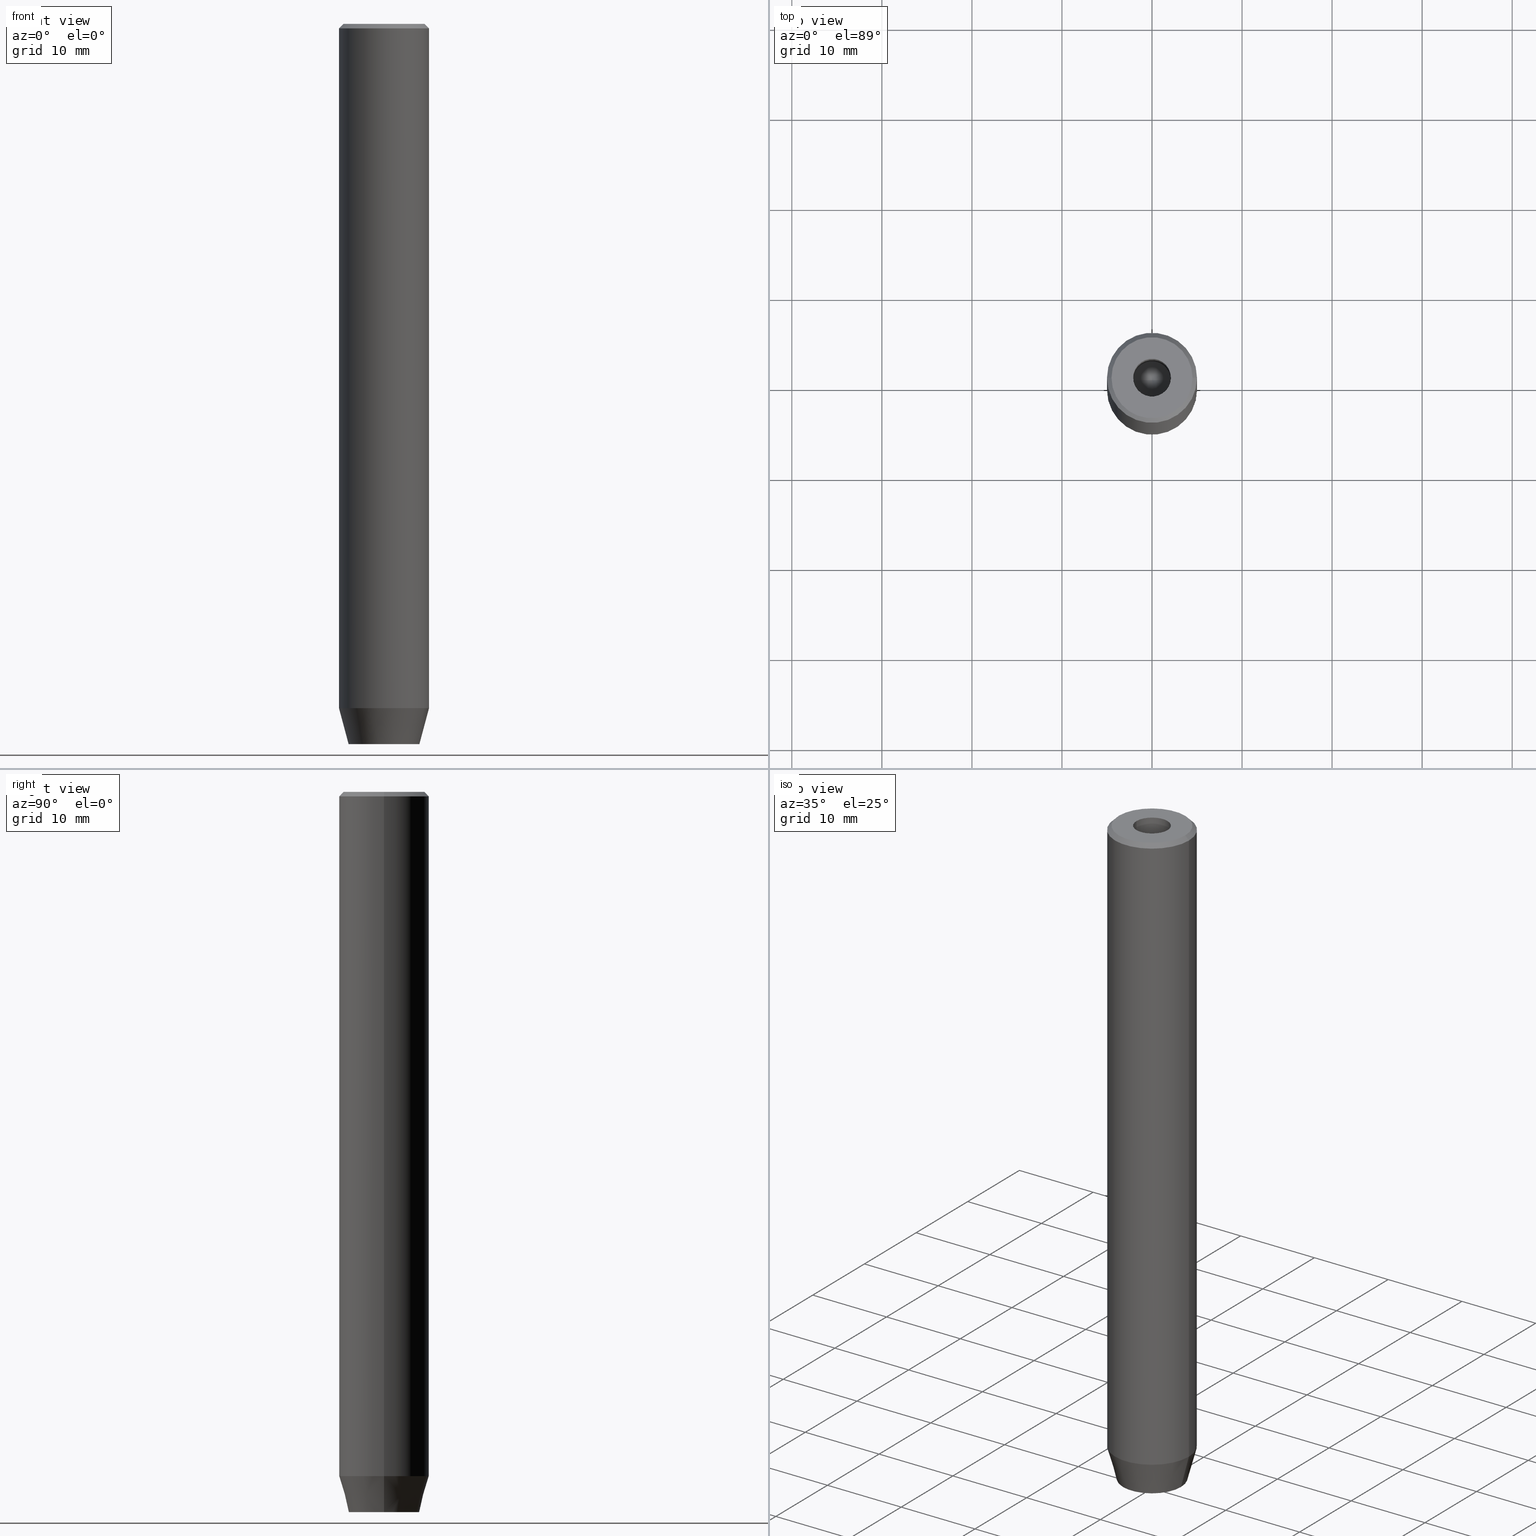
[diagram: canonical four-view strip — front | top / right | iso, engineering-drawing reading convention]
A machine part, canonical four-view strip (front | top / right | iso — engineering-drawing reading convention). The complete STEP part file that produces these views, byte-faithful:
ISO-10303-21;
HEADER;
FILE_DESCRIPTION (( 'STEP AP203' ),
    '1' );
FILE_NAME ('d16a.STEP',
    '2024-01-02T21:58:11',
    ( '' ),
    ( '' ),
    'SwSTEP 2.0',
    'SolidWorks 2019',
    '' );
FILE_SCHEMA (( 'CONFIG_CONTROL_DESIGN' ));
ENDSEC;

DATA;
#1 = DIRECTION ( 'NONE',  ( 0.000000000000000000, -0.000000000000000000, 1.000000000000000000 ) ) ;
#2 = ORIENTED_EDGE ( 'NONE', *, *, #81, .F. ) ;
#3 = CARTESIAN_POINT ( 'NONE',  ( 0.000000000000000000, 0.000000000000000000, 0.000000000000000000 ) ) ;
#4 = ORIENTED_EDGE ( 'NONE', *, *, #502, .F. ) ;
#5 = CARTESIAN_POINT ( 'NONE',  ( 0.000000000000000000, 0.000000000000000000, 0.000000000000000000 ) ) ;
#6 = PLANE ( 'NONE',  #512 ) ;
#7 = VECTOR ( 'NONE', #556, 1000.000000000000000 ) ;
#8 = LOCAL_TIME ( 22, 58, 11.00000000000000000, #527 ) ;
#9 = CARTESIAN_POINT ( 'NONE',  ( -4.499999999999997335, 0.000000000000000000, 0.000000000000000000 ) ) ;
#10 = DIRECTION ( 'NONE',  ( 0.4999999999999996669, -0.8660254037844388186, 0.000000000000000000 ) ) ;
#11 = FACE_OUTER_BOUND ( 'NONE', #587, .T. ) ;
#12 = CARTESIAN_POINT ( 'NONE',  ( 0.000000000000000000, 0.000000000000000000, 0.000000000000000000 ) ) ;
#13 = VERTEX_POINT ( 'NONE', #94 ) ;
#14 = PLANE ( 'NONE',  #39 ) ;
#15 = DIRECTION ( 'NONE',  ( -0.000000000000000000, -0.000000000000000000, 1.000000000000000000 ) ) ;
#16 = CIRCLE ( 'NONE', #379, 3.928203230275509661 ) ;
#17 = DIRECTION ( 'NONE',  ( 0.5000000000000001110, 0.8660254037844385966, -0.000000000000000000 ) ) ;
#18 = EDGE_CURVE ( 'NONE', #23, #111, #358, .T. ) ;
#19 = ORIENTED_EDGE ( 'NONE', *, *, #342, .T. ) ;
#20 = CYLINDRICAL_SURFACE ( 'NONE', #201, 5.000000000000000000 ) ;
#21 = ORIENTED_EDGE ( 'NONE', *, *, #37, .F. ) ;
#22 = CARTESIAN_POINT ( 'NONE',  ( 2.099999999999996980, 0.000000000000000000, -15.00000000000000000 ) ) ;
#23 = VERTEX_POINT ( 'NONE', #140 ) ;
#24 = APPROVAL_ROLE ( '' ) ;
#25 = EDGE_CURVE ( 'NONE', #33, #136, #429, .T. ) ;
#26 = CARTESIAN_POINT ( 'NONE',  ( 5.000000000000000000, 0.000000000000000000, 0.000000000000000000 ) ) ;
#27 = CONICAL_SURFACE ( 'NONE', #115, 4.499999999999997335, 0.7853981633974447263 ) ;
#28 = ORIENTED_EDGE ( 'NONE', *, *, #510, .F. ) ;
#29 = CALENDAR_DATE ( 2024, 2, 1 ) ;
#30 = LINE ( 'NONE', #170, #388 ) ;
#31 = LINE ( 'NONE', #26, #56 ) ;
#32 = PERSON_AND_ORGANIZATION_ROLE ( 'design_owner' ) ;
#33 = VERTEX_POINT ( 'NONE', #364 ) ;
#34 = DIRECTION ( 'NONE',  ( -0.000000000000000000, -0.000000000000000000, 1.000000000000000000 ) ) ;
#35 = AXIS2_PLACEMENT_3D ( 'NONE', #413, #313, #551 ) ;
#36 = AXIS2_PLACEMENT_3D ( 'NONE', #217, #164, #259 ) ;
#37 = EDGE_CURVE ( 'NONE', #114, #268, #177, .T. ) ;
#38 = APPLICATION_PROTOCOL_DEFINITION ( 'international standard', 'config_control_design', 1994, #179 ) ;
#39 = AXIS2_PLACEMENT_3D ( 'NONE', #417, #198, #195 ) ;
#40 = ORIENTED_EDGE ( 'NONE', *, *, #81, .T. ) ;
#41 = EDGE_LOOP ( 'NONE', ( #63, #523, #491 ) ) ;
#42 = PERSON ( 'NEUR�EN�', 'NEUR�EN�', 'NEUR�EN�', ('NEUR�EN�'), ('NEUR�EN�'), ('NEUR�EN�') ) ;
#43 = DIRECTION ( 'NONE',  ( -0.000000000000000000, -0.000000000000000000, 1.000000000000000000 ) ) ;
#44 = EDGE_CURVE ( 'NONE', #329, #247, #230, .T. ) ;
#45 = CARTESIAN_POINT ( 'NONE',  ( 0.000000000000000000, 0.000000000000000000, 0.000000000000000000 ) ) ;
#46 = VECTOR ( 'NONE', #495, 1000.000000000000000 ) ;
#47 = DIRECTION ( 'NONE',  ( -0.000000000000000000, -0.000000000000000000, 1.000000000000000000 ) ) ;
#48 = CYLINDRICAL_SURFACE ( 'NONE', #236, 2.099999999999997868 ) ;
#49 = ORIENTED_EDGE ( 'NONE', *, *, #543, .F. ) ;
#50 = DIRECTION ( 'NONE',  ( -0.000000000000000000, -0.000000000000000000, -1.000000000000000000 ) ) ;
#51 = CARTESIAN_POINT ( 'NONE',  ( 0.000000000000000000, 0.000000000000000000, -15.00000000000000000 ) ) ;
#52 = VERTEX_POINT ( 'NONE', #464 ) ;
#53 = DIRECTION ( 'NONE',  ( -0.000000000000000000, -0.000000000000000000, -1.000000000000000000 ) ) ;
#54 = DIRECTION ( 'NONE',  ( -0.000000000000000000, -0.000000000000000000, 1.000000000000000000 ) ) ;
#55 = EDGE_CURVE ( 'NONE', #393, #329, #418, .T. ) ;
#56 = VECTOR ( 'NONE', #262, 1000.000000000000000 ) ;
#57 = LINE ( 'NONE', #365, #117 ) ;
#58 = CARTESIAN_POINT ( 'NONE',  ( 5.000000000000000000, 0.000000000000000000, -0.5000000000000065503 ) ) ;
#59 = DIRECTION ( 'NONE',  ( 0.8660254037844385966, -0.5000000000000001110, 0.000000000000000000 ) ) ;
#60 = PLANE ( 'NONE',  #282 ) ;
#61 = EDGE_CURVE ( 'NONE', #33, #168, #223, .T. ) ;
#62 = DIRECTION ( 'NONE',  ( 1.000000000000000000, 0.000000000000000000, 0.000000000000000000 ) ) ;
#63 = ORIENTED_EDGE ( 'NONE', *, *, #407, .F. ) ;
#64 = ORIENTED_EDGE ( 'NONE', *, *, #355, .T. ) ;
#65 = VECTOR ( 'NONE', #540, 1000.000000000000114 ) ;
#66 = CARTESIAN_POINT ( 'NONE',  ( 0.000000000000000000, 0.000000000000000000, 0.000000000000000000 ) ) ;
#67 = CC_DESIGN_APPROVAL ( #462, ( #374 ) ) ;
#68 = ORIENTED_EDGE ( 'NONE', *, *, #502, .T. ) ;
#69 = CARTESIAN_POINT ( 'NONE',  ( 2.168404344971008868E-16, -2.309401076758503812, -80.00000000000001421 ) ) ;
#70 = ORIENTED_EDGE ( 'NONE', *, *, #312, .T. ) ;
#71 = ADVANCED_FACE ( 'NONE', ( #494 ), #6, .F. ) ;
#72 = LINE ( 'NONE', #207, #178 ) ;
#73 = ORIENTED_EDGE ( 'NONE', *, *, #289, .F. ) ;
#74 = DIRECTION ( 'NONE',  ( 0.000000000000000000, 0.000000000000000000, 1.000000000000000000 ) ) ;
#75 = CARTESIAN_POINT ( 'NONE',  ( 0.9999999999999997780, -1.732050807568878747, -80.00000000000001421 ) ) ;
#76 = VECTOR ( 'NONE', #214, 1000.000000000000114 ) ;
#77 = COORDINATED_UNIVERSAL_TIME_OFFSET ( 1, 0, .AHEAD. ) ;
#78 = DIRECTION ( 'NONE',  ( 1.000000000000000000, 0.000000000000000000, 0.000000000000000000 ) ) ;
#79 = PERSON_AND_ORGANIZATION ( #42, #283 ) ;
#80 = DIRECTION ( 'NONE',  ( 0.2588190451025205174, 0.000000000000000000, 0.9659258262890684232 ) ) ;
#81 = EDGE_CURVE ( 'NONE', #329, #393, #533, .T. ) ;
#82 = CARTESIAN_POINT ( 'NONE',  ( 0.000000000000000000, 0.000000000000000000, 0.000000000000000000 ) ) ;
#83 = ORIENTED_EDGE ( 'NONE', *, *, #215, .F. ) ;
#84 = VERTEX_POINT ( 'NONE', #322 ) ;
#85 = VERTEX_POINT ( 'NONE', #457 ) ;
#86 = AXIS2_PLACEMENT_3D ( 'NONE', #157, #15, #62 ) ;
#87 = VECTOR ( 'NONE', #50, 1000.000000000000000 ) ;
#88 = DIRECTION ( 'NONE',  ( -0.000000000000000000, -0.000000000000000000, 1.000000000000000000 ) ) ;
#89 = EDGE_CURVE ( 'NONE', #181, #23, #366, .T. ) ;
#90 = FACE_OUTER_BOUND ( 'NONE', #541, .T. ) ;
#91 = SHAPE_DEFINITION_REPRESENTATION ( #131, #335 ) ;
#92 = DIRECTION ( 'NONE',  ( -5.633679745264339711E-16, -1.000000000000000000, 0.000000000000000000 ) ) ;
#93 = ORIENTED_EDGE ( 'NONE', *, *, #372, .F. ) ;
#94 = CARTESIAN_POINT ( 'NONE',  ( -1.084202172485504434E-16, 2.309401076758503812, -80.00000000000001421 ) ) ;
#95 = APPLICATION_CONTEXT ( 'configuration controlled 3d designs of mechanical parts and assemblies' ) ;
#96 = AXIS2_PLACEMENT_3D ( 'NONE', #241, #47, #270 ) ;
#97 = CC_DESIGN_APPROVAL ( #135, ( #237 ) ) ;
#98 = LINE ( 'NONE', #544, #352 ) ;
#99 = CARTESIAN_POINT ( 'NONE',  ( -1.000000000000000222, -1.732050807568877637, -77.20000000000001705 ) ) ;
#100 = DIRECTION ( 'NONE',  ( 0.000000000000000000, -1.000000000000000000, 0.000000000000000000 ) ) ;
#101 = ORIENTED_EDGE ( 'NONE', *, *, #215, .T. ) ;
#102 = ADVANCED_FACE ( 'NONE', ( #90 ), #368, .F. ) ;
#103 = CARTESIAN_POINT ( 'NONE',  ( 0.000000000000000000, 0.000000000000000000, -1.990051048614449116E-16 ) ) ;
#104 = VECTOR ( 'NONE', #442, 1000.000000000000000 ) ;
#105 = AXIS2_PLACEMENT_3D ( 'NONE', #82, #74, #260 ) ;
#106 = PLANE ( 'NONE',  #273 ) ;
#107 = DIRECTION ( 'NONE',  ( 0.000000000000000000, 0.000000000000000000, -1.000000000000000000 ) ) ;
#108 = EDGE_CURVE ( 'NONE', #85, #247, #264, .T. ) ;
#109 = CARTESIAN_POINT ( 'NONE',  ( -2.099999999999996980, 2.571758278209438013E-16, -15.00000000000000000 ) ) ;
#110 = ORIENTED_EDGE ( 'NONE', *, *, #285, .F. ) ;
#111 = VERTEX_POINT ( 'NONE', #581 ) ;
#112 = LINE ( 'NONE', #428, #409 ) ;
#113 = CC_DESIGN_PERSON_AND_ORGANIZATION_ASSIGNMENT ( #524, #483, ( #237 ) ) ;
#114 = VERTEX_POINT ( 'NONE', #137 ) ;
#115 = AXIS2_PLACEMENT_3D ( 'NONE', #66, #107, #240 ) ;
#116 = CARTESIAN_POINT ( 'NONE',  ( 0.000000000000000000, 0.000000000000000000, 0.000000000000000000 ) ) ;
#117 = VECTOR ( 'NONE', #234, 1000.000000000000000 ) ;
#118 = ORIENTED_EDGE ( 'NONE', *, *, #18, .T. ) ;
#119 = PERSON_AND_ORGANIZATION_ROLE ( 'creator' ) ;
#120 = LINE ( 'NONE', #128, #104 ) ;
#121 = ORIENTED_EDGE ( 'NONE', *, *, #127, .F. ) ;
#122 = CARTESIAN_POINT ( 'NONE',  ( -1.999999999999997780, 1.154700538379253238, -77.20000000000001705 ) ) ;
#123 = MECHANICAL_CONTEXT ( 'NONE', #95, 'mechanical' ) ;
#124 = DIRECTION ( 'NONE',  ( -1.000000000000000000, 0.000000000000000000, -0.000000000000000000 ) ) ;
#125 = AXIS2_PLACEMENT_3D ( 'NONE', #411, #548, #92 ) ;
#126 = APPROVAL_STATUS ( 'not_yet_approved' ) ;
#127 = EDGE_CURVE ( 'NONE', #276, #181, #176, .T. ) ;
#128 = CARTESIAN_POINT ( 'NONE',  ( 1.000000000000000444, 1.732050807568877637, -80.00000000000001421 ) ) ;
#129 = APPROVAL_STATUS ( 'not_yet_approved' ) ;
#130 = ORIENTED_EDGE ( 'NONE', *, *, #127, .T. ) ;
#131 = PRODUCT_DEFINITION_SHAPE ( 'NONE', 'NONE',  #374 ) ;
#132 = DIRECTION ( 'NONE',  ( -0.000000000000000000, -0.000000000000000000, 1.000000000000000000 ) ) ;
#133 = ADVANCED_FACE ( 'NONE', ( #269 ), #48, .F. ) ;
#134 = DIRECTION ( 'NONE',  ( 1.000000000000000000, 0.000000000000000000, 0.000000000000000000 ) ) ;
#135 = APPROVAL ( #575, 'NEUR�EN�' ) ;
#136 = VERTEX_POINT ( 'NONE', #290 ) ;
#137 = CARTESIAN_POINT ( 'NONE',  ( 2.000000000000000888, 1.154700538379251462, -77.20000000000001705 ) ) ;
#138 = LINE ( 'NONE', #9, #468 ) ;
#139 = EDGE_LOOP ( 'NONE', ( #154, #517, #404, #493 ) ) ;
#140 = CARTESIAN_POINT ( 'NONE',  ( -1.999999999999998668, -1.154700538379252572, -77.20000000000001705 ) ) ;
#141 = VECTOR ( 'NONE', #239, 1000.000000000000000 ) ;
#142 = CC_DESIGN_APPROVAL ( #318, ( #492 ) ) ;
#143 = FACE_OUTER_BOUND ( 'NONE', #205, .T. ) ;
#144 = EDGE_CURVE ( 'NONE', #247, #85, #309, .T. ) ;
#145 = ORIENTED_EDGE ( 'NONE', *, *, #552, .F. ) ;
#146 = CARTESIAN_POINT ( 'NONE',  ( 0.000000000000000000, 2.309401076758503812, -77.20000000000001705 ) ) ;
#147 = DIRECTION ( 'NONE',  ( 0.000000000000000000, 0.000000000000000000, -1.000000000000000000 ) ) ;
#148 = EDGE_LOOP ( 'NONE', ( #68, #314 ) ) ;
#149 = CARTESIAN_POINT ( 'NONE',  ( -1.999999999999998668, -1.154700538379252572, -77.20000000000001705 ) ) ;
#150 = FACE_OUTER_BOUND ( 'NONE', #158, .T. ) ;
#151 = ADVANCED_FACE ( 'NONE', ( #332 ), #547, .T. ) ;
#152 = CONICAL_SURFACE ( 'NONE', #86, 2.099999999999996980, 1.029744258676652535 ) ;
#153 = CARTESIAN_POINT ( 'NONE',  ( 0.000000000000000000, 0.000000000000000000, -76.00000000000001421 ) ) ;
#154 = ORIENTED_EDGE ( 'NONE', *, *, #193, .T. ) ;
#155 = DIRECTION ( 'NONE',  ( 1.000000000000000000, 0.000000000000000000, 0.000000000000000000 ) ) ;
#156 = VERTEX_POINT ( 'NONE', #244 ) ;
#157 = CARTESIAN_POINT ( 'NONE',  ( 0.000000000000000000, 0.000000000000000000, -15.00000000000000000 ) ) ;
#158 = EDGE_LOOP ( 'NONE', ( #49, #570, #561, #64 ) ) ;
#159 = APPROVAL_DATE_TIME ( #490, #318 ) ;
#160 = DESIGN_CONTEXT ( 'detailed design', #179, 'design' ) ;
#161 = CIRCLE ( 'NONE', #534, 5.000000000000000000 ) ;
#162 = AXIS2_PLACEMENT_3D ( 'NONE', #325, #232, #192 ) ;
#163 = ADVANCED_FACE ( 'NONE', ( #554 ), #324, .F. ) ;
#164 = DIRECTION ( 'NONE',  ( -0.000000000000000000, -0.000000000000000000, 1.000000000000000000 ) ) ;
#165 = ORIENTED_EDGE ( 'NONE', *, *, #573, .F. ) ;
#166 = DATE_AND_TIME ( #303, #448 ) ;
#167 = CARTESIAN_POINT ( 'NONE',  ( 2.000000000000000888, 0.000000000000000000, -77.20000000000001705 ) ) ;
#168 = VERTEX_POINT ( 'NONE', #58 ) ;
#169 = CALENDAR_DATE ( 2024, 2, 1 ) ;
#170 = CARTESIAN_POINT ( 'NONE',  ( 5.000000000000000000, 0.000000000000000000, -76.00000000000001421 ) ) ;
#171 = EDGE_CURVE ( 'NONE', #384, #393, #515, .T. ) ;
#172 = DATE_AND_TIME ( #577, #227 ) ;
#173 = DIRECTION ( 'NONE',  ( 1.000000000000000000, 0.000000000000000000, 0.000000000000000000 ) ) ;
#174 = CIRCLE ( 'NONE', #503, 4.499999999999997335 ) ;
#175 = ORIENTED_EDGE ( 'NONE', *, *, #289, .T. ) ;
#176 = LINE ( 'NONE', #538, #65 ) ;
#177 = LINE ( 'NONE', #504, #46 ) ;
#178 = VECTOR ( 'NONE', #391, 1000.000000000000000 ) ;
#179 = APPLICATION_CONTEXT ( 'configuration controlled 3d designs of mechanical parts and assemblies' ) ;
#180 = EDGE_CURVE ( 'NONE', #181, #396, #112, .T. ) ;
#181 = VERTEX_POINT ( 'NONE', #474 ) ;
#182 = DIRECTION ( 'NONE',  ( -0.000000000000000000, -0.000000000000000000, 1.000000000000000000 ) ) ;
#183 = CARTESIAN_POINT ( 'NONE',  ( 3.928203230275509661, 0.000000000000000000, -80.00000000000001421 ) ) ;
#184 = EDGE_LOOP ( 'NONE', ( #458, #450 ) ) ;
#185 = CARTESIAN_POINT ( 'NONE',  ( 0.000000000000000000, 0.000000000000000000, -15.00000000000000000 ) ) ;
#186 = EDGE_LOOP ( 'NONE', ( #584, #516 ) ) ;
#187 = ADVANCED_FACE ( 'NONE', ( #280 ), #27, .T. ) ;
#188 = DIRECTION ( 'NONE',  ( 1.000000000000000000, 0.000000000000000000, 0.000000000000000000 ) ) ;
#189 = DIRECTION ( 'NONE',  ( 1.000000000000000000, 0.000000000000000000, 0.000000000000000000 ) ) ;
#190 = VECTOR ( 'NONE', #311, 1000.000000000000000 ) ;
#191 = VECTOR ( 'NONE', #568, 1000.000000000000000 ) ;
#192 = DIRECTION ( 'NONE',  ( 1.000000000000000000, 0.000000000000000000, 0.000000000000000000 ) ) ;
#193 = EDGE_CURVE ( 'NONE', #156, #441, #293, .T. ) ;
#194 = FACE_OUTER_BOUND ( 'NONE', #184, .T. ) ;
#195 = DIRECTION ( 'NONE',  ( -0.8660254037844385966, -0.5000000000000001110, 0.000000000000000000 ) ) ;
#196 = ADVANCED_FACE ( 'NONE', ( #373 ), #242, .F. ) ;
#197 = CARTESIAN_POINT ( 'NONE',  ( -1.000000000000000444, 1.732050807568877637, -80.00000000000001421 ) ) ;
#198 = DIRECTION ( 'NONE',  ( -0.5000000000000001110, 0.8660254037844385966, 0.000000000000000000 ) ) ;
#199 = CARTESIAN_POINT ( 'NONE',  ( 2.000000000000000888, 1.154700538379251462, -80.00000000000001421 ) ) ;
#200 = AXIS2_PLACEMENT_3D ( 'NONE', #185, #272, #414 ) ;
#201 = AXIS2_PLACEMENT_3D ( 'NONE', #204, #385, #326 ) ;
#202 = DIRECTION ( 'NONE',  ( -0.000000000000000000, -0.000000000000000000, -1.000000000000000000 ) ) ;
#203 = ORIENTED_EDGE ( 'NONE', *, *, #486, .F. ) ;
#204 = CARTESIAN_POINT ( 'NONE',  ( 0.000000000000000000, 0.000000000000000000, 0.000000000000000000 ) ) ;
#205 = EDGE_LOOP ( 'NONE', ( #317, #357, #245, #203 ) ) ;
#206 = EDGE_CURVE ( 'NONE', #441, #13, #514, .T. ) ;
#207 = CARTESIAN_POINT ( 'NONE',  ( 2.099999999999996980, 0.000000000000000000, -15.00000000000000000 ) ) ;
#208 = VERTEX_POINT ( 'NONE', #328 ) ;
#209 = VECTOR ( 'NONE', #423, 1000.000000000000000 ) ;
#210 = LOCAL_TIME ( 22, 58, 11.00000000000000000, #440 ) ;
#211 = CARTESIAN_POINT ( 'NONE',  ( -2.099999999999996980, 2.571758278209438013E-16, -15.00000000000000000 ) ) ;
#212 = ORIENTED_EDGE ( 'NONE', *, *, #552, .T. ) ;
#213 = DATE_AND_TIME ( #29, #210 ) ;
#214 = DIRECTION ( 'NONE',  ( -0.8660254037844388186, -0.4999999999999996114, 0.000000000000000000 ) ) ;
#215 = EDGE_CURVE ( 'NONE', #501, #52, #539, .T. ) ;
#216 = PERSON_AND_ORGANIZATION ( #42, #283 ) ;
#217 = CARTESIAN_POINT ( 'NONE',  ( 0.000000000000000000, 0.000000000000000000, -80.00000000000001421 ) ) ;
#218 = CC_DESIGN_PERSON_AND_ORGANIZATION_ASSIGNMENT ( #344, #339, ( #492 ) ) ;
#219 = AXIS2_PLACEMENT_3D ( 'NONE', #254, #444, #173 ) ;
#220 = LOCAL_TIME ( 22, 58, 11.00000000000000000, #77 ) ;
#221 = PERSON_AND_ORGANIZATION ( #42, #283 ) ;
#222 = CARTESIAN_POINT ( 'NONE',  ( 4.499999999999997335, 5.510910596163085611E-16, 0.000000000000000000 ) ) ;
#223 = LINE ( 'NONE', #222, #281 ) ;
#224 = ORIENTED_EDGE ( 'NONE', *, *, #171, .F. ) ;
#225 = DIRECTION ( 'NONE',  ( -0.000000000000000000, -0.000000000000000000, 1.000000000000000000 ) ) ;
#226 = CONICAL_SURFACE ( 'NONE', #35, 5.000000000000000000, 0.2617993877991491858 ) ;
#227 = LOCAL_TIME ( 22, 58, 11.00000000000000000, #531 ) ;
#228 = ORIENTED_EDGE ( 'NONE', *, *, #355, .F. ) ;
#229 = CARTESIAN_POINT ( 'NONE',  ( 0.000000000000000000, 0.000000000000000000, 0.000000000000000000 ) ) ;
#230 = LINE ( 'NONE', #361, #475 ) ;
#231 = EDGE_CURVE ( 'NONE', #114, #276, #521, .T. ) ;
#232 = DIRECTION ( 'NONE',  ( -0.000000000000000000, -0.000000000000000000, 1.000000000000000000 ) ) ;
#233 = EDGE_LOOP ( 'NONE', ( #488, #212, #330, #130, #294, #118 ) ) ;
#234 = DIRECTION ( 'NONE',  ( -0.000000000000000000, -0.000000000000000000, 1.000000000000000000 ) ) ;
#235 = DIRECTION ( 'NONE',  ( -0.8571673007021113344, 1.049727191138617463E-16, 0.5150380749100558209 ) ) ;
#236 = AXIS2_PLACEMENT_3D ( 'NONE', #45, #225, #585 ) ;
#237 = SECURITY_CLASSIFICATION ( '', '', #299 ) ;
#238 = ADVANCED_FACE ( 'NONE', ( #150 ), #20, .T. ) ;
#239 = DIRECTION ( 'NONE',  ( 0.8660254037844385966, 0.5000000000000001110, 0.000000000000000000 ) ) ;
#240 = DIRECTION ( 'NONE',  ( -1.000000000000000000, 0.000000000000000000, 0.000000000000000000 ) ) ;
#241 = CARTESIAN_POINT ( 'NONE',  ( 0.000000000000000000, 0.000000000000000000, -76.00000000000001421 ) ) ;
#242 = CYLINDRICAL_SURFACE ( 'NONE', #513, 2.099999999999997868 ) ;
#243 = MANIFOLD_SOLID_BREP ( 'Vrt�k z�vitn�ku pro M5 z�vit1', #336 ) ;
#244 = CARTESIAN_POINT ( 'NONE',  ( -1.999999999999998668, -1.154700538379252572, -80.00000000000001421 ) ) ;
#245 = ORIENTED_EDGE ( 'NONE', *, *, #372, .T. ) ;
#246 = AXIS2_PLACEMENT_3D ( 'NONE', #51, #43, #134 ) ;
#247 = VERTEX_POINT ( 'NONE', #287 ) ;
#248 = AXIS2_PLACEMENT_3D ( 'NONE', #103, #467, #155 ) ;
#249 = DIRECTION ( 'NONE',  ( 1.000000000000000000, 0.000000000000000000, 0.000000000000000000 ) ) ;
#250 = ADVANCED_FACE ( 'NONE', ( #420 ), #60, .F. ) ;
#251 = ORIENTED_EDGE ( 'NONE', *, *, #580, .F. ) ;
#252 = LINE ( 'NONE', #481, #583 ) ;
#253 = ORIENTED_EDGE ( 'NONE', *, *, #342, .F. ) ;
#254 = CARTESIAN_POINT ( 'NONE',  ( 0.000000000000000000, 0.000000000000000000, -0.5000000000000065503 ) ) ;
#255 = ORIENTED_EDGE ( 'NONE', *, *, #415, .T. ) ;
#256 =( NAMED_UNIT ( * ) SI_UNIT ( $, .STERADIAN. ) SOLID_ANGLE_UNIT ( ) );
#257 = CIRCLE ( 'NONE', #219, 5.000000000000000000 ) ;
#258 = ADVANCED_FACE ( 'NONE', ( #472 ), #152, .F. ) ;
#259 = DIRECTION ( 'NONE',  ( 1.000000000000000000, 0.000000000000000000, 0.000000000000000000 ) ) ;
#260 = DIRECTION ( 'NONE',  ( 1.000000000000000000, 0.000000000000000000, 0.000000000000000000 ) ) ;
#261 = DIRECTION ( 'NONE',  ( 0.000000000000000000, 0.000000000000000000, -1.000000000000000000 ) ) ;
#262 = DIRECTION ( 'NONE',  ( -0.000000000000000000, -0.000000000000000000, 1.000000000000000000 ) ) ;
#263 = APPLICATION_PROTOCOL_DEFINITION ( 'international standard', 'config_control_design', 1994, #95 ) ;
#264 = CIRCLE ( 'NONE', #466, 2.099999999999998757 ) ;
#265 = EDGE_LOOP ( 'NONE', ( #333, #406, #278, #449, #28, #359 ) ) ;
#266 = CC_DESIGN_PERSON_AND_ORGANIZATION_ASSIGNMENT ( #79, #32, ( #553 ) ) ;
#267 = ORIENTED_EDGE ( 'NONE', *, *, #407, .T. ) ;
#268 = VERTEX_POINT ( 'NONE', #199 ) ;
#269 = FACE_OUTER_BOUND ( 'NONE', #338, .T. ) ;
#270 = DIRECTION ( 'NONE',  ( 1.000000000000000000, 0.000000000000000000, 0.000000000000000000 ) ) ;
#271 = ADVANCED_FACE ( 'NONE', ( #334, #194 ), #378, .T. ) ;
#272 = DIRECTION ( 'NONE',  ( -0.000000000000000000, -0.000000000000000000, 1.000000000000000000 ) ) ;
#273 = AXIS2_PLACEMENT_3D ( 'NONE', #557, #463, #459 ) ;
#274 = DIRECTION ( 'NONE',  ( -0.7071067811865451302, 0.000000000000000000, -0.7071067811865500152 ) ) ;
#275 = DIRECTION ( 'NONE',  ( -0.5000000000000000000, -0.8660254037844387076, 0.000000000000000000 ) ) ;
#276 = VERTEX_POINT ( 'NONE', #400 ) ;
#277 = PLANE ( 'NONE',  #125 ) ;
#278 = ORIENTED_EDGE ( 'NONE', *, *, #298, .F. ) ;
#279 = FACE_OUTER_BOUND ( 'NONE', #233, .T. ) ;
#280 = FACE_OUTER_BOUND ( 'NONE', #292, .T. ) ;
#281 = VECTOR ( 'NONE', #408, 1000.000000000000114 ) ;
#282 = AXIS2_PLACEMENT_3D ( 'NONE', #426, #10, #566 ) ;
#283 = ORGANIZATION ( 'NEUR�EN�', 'NEUR�EN�', '' ) ;
#284 = CYLINDRICAL_SURFACE ( 'NONE', #291, 5.000000000000000000 ) ;
#285 = EDGE_CURVE ( 'NONE', #276, #208, #387, .T. ) ;
#286 = DIRECTION ( 'NONE',  ( 0.8660254037844385966, 0.5000000000000001110, 0.000000000000000000 ) ) ;
#287 = CARTESIAN_POINT ( 'NONE',  ( 2.099999999999998757, 0.000000000000000000, -1.990051048614449116E-16 ) ) ;
#288 = ORIENTED_EDGE ( 'NONE', *, *, #44, .F. ) ;
#289 = EDGE_CURVE ( 'NONE', #393, #85, #536, .T. ) ;
#290 = CARTESIAN_POINT ( 'NONE',  ( -4.499999999999997335, 0.000000000000000000, 0.000000000000000000 ) ) ;
#291 = AXIS2_PLACEMENT_3D ( 'NONE', #5, #424, #188 ) ;
#292 = EDGE_LOOP ( 'NONE', ( #315, #297, #253, #165 ) ) ;
#293 = LINE ( 'NONE', #471, #209 ) ;
#294 = ORIENTED_EDGE ( 'NONE', *, *, #89, .T. ) ;
#295 = PERSON_AND_ORGANIZATION ( #42, #283 ) ;
#296 = CARTESIAN_POINT ( 'NONE',  ( 0.000000000000000000, 0.000000000000000000, -80.00000000000001421 ) ) ;
#297 = ORIENTED_EDGE ( 'NONE', *, *, #61, .T. ) ;
#298 = EDGE_CURVE ( 'NONE', #396, #156, #487, .T. ) ;
#299 = SECURITY_CLASSIFICATION_LEVEL ( 'unclassified' ) ;
#300 = DIRECTION ( 'NONE',  ( -0.000000000000000000, -0.000000000000000000, -1.000000000000000000 ) ) ;
#301 = CC_DESIGN_SECURITY_CLASSIFICATION ( #237, ( #492 ) ) ;
#302 = DIRECTION ( 'NONE',  ( -0.000000000000000000, -0.000000000000000000, -1.000000000000000000 ) ) ;
#303 = CALENDAR_DATE ( 2024, 2, 1 ) ;
#304 = CARTESIAN_POINT ( 'NONE',  ( 2.000000000000000888, -1.154700538379252572, -77.20000000000001705 ) ) ;
#305 = DATE_TIME_ROLE ( 'creation_date' ) ;
#306 = EDGE_LOOP ( 'NONE', ( #389, #175, #574, #288 ) ) ;
#307 = ADVANCED_FACE ( 'NONE', ( #437 ), #341, .F. ) ;
#308 = EDGE_LOOP ( 'NONE', ( #497, #21, #145, #477 ) ) ;
#309 = CIRCLE ( 'NONE', #248, 2.099999999999998757 ) ;
#310 = ORIENTED_EDGE ( 'NONE', *, *, #206, .T. ) ;
#311 = DIRECTION ( 'NONE',  ( 5.633679745264339711E-16, 1.000000000000000000, 0.000000000000000000 ) ) ;
#312 = EDGE_CURVE ( 'NONE', #542, #84, #419, .T. ) ;
#313 = DIRECTION ( 'NONE',  ( -0.000000000000000000, -0.000000000000000000, 1.000000000000000000 ) ) ;
#314 = ORIENTED_EDGE ( 'NONE', *, *, #25, .T. ) ;
#315 = ORIENTED_EDGE ( 'NONE', *, *, #25, .F. ) ;
#316 = CARTESIAN_POINT ( 'NONE',  ( -1.000000000000000444, 1.732050807568877637, -77.20000000000001705 ) ) ;
#317 = ORIENTED_EDGE ( 'NONE', *, *, #401, .F. ) ;
#318 = APPROVAL ( #129, 'NEUR�EN�' ) ;
#319 = DIRECTION ( 'NONE',  ( 1.000000000000000000, 0.000000000000000000, 0.000000000000000000 ) ) ;
#320 = VECTOR ( 'NONE', #302, 1000.000000000000000 ) ;
#321 = FACE_OUTER_BOUND ( 'NONE', #148, .T. ) ;
#322 = CARTESIAN_POINT ( 'NONE',  ( -3.928203230275509661, 5.466947754046981113E-16, -80.00000000000001421 ) ) ;
#323 = CARTESIAN_POINT ( 'NONE',  ( 2.000000000000000888, 0.000000000000000000, -80.00000000000001421 ) ) ;
#324 = PLANE ( 'NONE',  #402 ) ;
#325 = CARTESIAN_POINT ( 'NONE',  ( 0.000000000000000000, 0.000000000000000000, -76.00000000000001421 ) ) ;
#326 = DIRECTION ( 'NONE',  ( 1.000000000000000000, 0.000000000000000000, 0.000000000000000000 ) ) ;
#327 = VECTOR ( 'NONE', #300, 1000.000000000000000 ) ;
#328 = CARTESIAN_POINT ( 'NONE',  ( 2.000000000000000888, -1.154700538379252572, -80.00000000000001421 ) ) ;
#329 = VERTEX_POINT ( 'NONE', #22 ) ;
#330 = ORIENTED_EDGE ( 'NONE', *, *, #231, .T. ) ;
#331 = EDGE_CURVE ( 'NONE', #501, #168, #31, .T. ) ;
#332 = FACE_OUTER_BOUND ( 'NONE', #567, .T. ) ;
#333 = ORIENTED_EDGE ( 'NONE', *, *, #206, .F. ) ;
#334 = FACE_BOUND ( 'NONE', #265, .T. ) ;
#335 = ADVANCED_BREP_SHAPE_REPRESENTATION ( 'd16a', ( #243, #105 ), #381 ) ;
#336 = CLOSED_SHELL ( 'NONE', ( #196, #258, #187, #586, #451, #271, #469, #238, #461, #151, #564, #520, #71, #250, #307, #163, #445, #102, #133 ) ) ;
#337 = VECTOR ( 'NONE', #286, 1000.000000000000000 ) ;
#338 = EDGE_LOOP ( 'NONE', ( #73, #2, #427, #519 ) ) ;
#339 = PERSON_AND_ORGANIZATION_ROLE ( 'design_supplier' ) ;
#340 = VECTOR ( 'NONE', #53, 1000.000000000000000 ) ;
#341 = PLANE ( 'NONE',  #360 ) ;
#342 = EDGE_CURVE ( 'NONE', #386, #168, #161, .T. ) ;
#343 = EDGE_LOOP ( 'NONE', ( #482, #251, #382, #346 ) ) ;
#344 = PERSON_AND_ORGANIZATION ( #42, #283 ) ;
#345 = DIRECTION ( 'NONE',  ( 1.000000000000000000, 0.000000000000000000, 0.000000000000000000 ) ) ;
#346 = ORIENTED_EDGE ( 'NONE', *, *, #180, .T. ) ;
#347 = APPROVAL_ROLE ( '' ) ;
#348 = PRODUCT_RELATED_PRODUCT_CATEGORY ( 'detail', '', ( #553 ) ) ;
#349 = CARTESIAN_POINT ( 'NONE',  ( -1.000000000000000222, -1.732050807568877637, -80.00000000000001421 ) ) ;
#350 = APPROVAL_DATE_TIME ( #172, #135 ) ;
#351 = CIRCLE ( 'NONE', #96, 5.000000000000000000 ) ;
#352 = VECTOR ( 'NONE', #59, 1000.000000000000000 ) ;
#353 = DIRECTION ( 'NONE',  ( -0.8660254037844387076, 0.5000000000000001110, 0.000000000000000000 ) ) ;
#354 = APPROVAL_ROLE ( '' ) ;
#355 = EDGE_CURVE ( 'NONE', #168, #386, #257, .T. ) ;
#356 = CC_DESIGN_PERSON_AND_ORGANIZATION_ASSIGNMENT ( #295, #119, ( #492 ) ) ;
#357 = ORIENTED_EDGE ( 'NONE', *, *, #380, .T. ) ;
#358 = LINE ( 'NONE', #369, #190 ) ;
#359 = ORIENTED_EDGE ( 'NONE', *, *, #362, .F. ) ;
#360 = AXIS2_PLACEMENT_3D ( 'NONE', #167, #578, #572 ) ;
#361 = CARTESIAN_POINT ( 'NONE',  ( 2.099999999999997868, 0.000000000000000000, 0.000000000000000000 ) ) ;
#362 = EDGE_CURVE ( 'NONE', #13, #268, #120, .T. ) ;
#363 = ORIENTED_EDGE ( 'NONE', *, *, #425, .T. ) ;
#364 = CARTESIAN_POINT ( 'NONE',  ( 4.499999999999997335, 5.817072295949926440E-16, 0.000000000000000000 ) ) ;
#365 = CARTESIAN_POINT ( 'NONE',  ( -5.000000000000000000, 6.123233995736766282E-16, 0.000000000000000000 ) ) ;
#366 = LINE ( 'NONE', #582, #476 ) ;
#367 = PLANE ( 'NONE',  #558 ) ;
#368 = CONICAL_SURFACE ( 'NONE', #499, 2.099999999999996980, 1.029744258676652535 ) ;
#369 = CARTESIAN_POINT ( 'NONE',  ( -1.999999999999998224, 1.126735949052866956E-15, -77.20000000000001705 ) ) ;
#370 = APPROVAL_PERSON_ORGANIZATION ( #221, #462, #24 ) ;
#371 = DIRECTION ( 'NONE',  ( -0.000000000000000000, -0.000000000000000000, 1.000000000000000000 ) ) ;
#372 = EDGE_CURVE ( 'NONE', #542, #501, #30, .T. ) ;
#373 = FACE_OUTER_BOUND ( 'NONE', #306, .T. ) ;
#374 = PRODUCT_DEFINITION ( 'NEZN�M�', '', #492, #160 ) ;
#375 = FACE_OUTER_BOUND ( 'NONE', #139, .T. ) ;
#376 = DIRECTION ( 'NONE',  ( -0.000000000000000000, -0.000000000000000000, 1.000000000000000000 ) ) ;
#377 = LINE ( 'NONE', #149, #87 ) ;
#378 = PLANE ( 'NONE',  #438 ) ;
#379 = AXIS2_PLACEMENT_3D ( 'NONE', #296, #34, #345 ) ;
#380 = EDGE_CURVE ( 'NONE', #84, #542, #16, .T. ) ;
#381 =( GEOMETRIC_REPRESENTATION_CONTEXT ( 3 ) GLOBAL_UNCERTAINTY_ASSIGNED_CONTEXT ( ( #395 ) ) GLOBAL_UNIT_ASSIGNED_CONTEXT ( ( #436, #571, #256 ) ) REPRESENTATION_CONTEXT ( 'NONE', 'WORKASPACE' ) );
#382 = ORIENTED_EDGE ( 'NONE', *, *, #89, .F. ) ;
#383 = DIRECTION ( 'NONE',  ( 1.000000000000000000, 0.000000000000000000, 0.000000000000000000 ) ) ;
#384 = VERTEX_POINT ( 'NONE', #478 ) ;
#385 = DIRECTION ( 'NONE',  ( -0.000000000000000000, -0.000000000000000000, 1.000000000000000000 ) ) ;
#386 = VERTEX_POINT ( 'NONE', #532 ) ;
#387 = LINE ( 'NONE', #304, #320 ) ;
#388 = VECTOR ( 'NONE', #80, 1000.000000000000000 ) ;
#389 = ORIENTED_EDGE ( 'NONE', *, *, #55, .F. ) ;
#390 = DATE_AND_TIME ( #169, #220 ) ;
#391 = DIRECTION ( 'NONE',  ( 0.8571673007021113344, 0.000000000000000000, 0.5150380749100558209 ) ) ;
#392 = CC_DESIGN_DATE_AND_TIME_ASSIGNMENT ( #213, #394, ( #237 ) ) ;
#393 = VERTEX_POINT ( 'NONE', #211 ) ;
#394 = DATE_TIME_ROLE ( 'classification_date' ) ;
#395 = UNCERTAINTY_MEASURE_WITH_UNIT (LENGTH_MEASURE( 1.000000000000000082E-05 ), #436, 'distance_accuracy_value', 'NONE');
#396 = VERTEX_POINT ( 'NONE', #69 ) ;
#397 = CARTESIAN_POINT ( 'NONE',  ( 0.000000000000000000, 2.309401076758503812, -77.20000000000001705 ) ) ;
#398 = PERSON_AND_ORGANIZATION ( #42, #283 ) ;
#399 = EDGE_LOOP ( 'NONE', ( #363, #412, #121, #526 ) ) ;
#400 = CARTESIAN_POINT ( 'NONE',  ( 2.000000000000000888, -1.154700538379252572, -77.20000000000001705 ) ) ;
#401 = EDGE_CURVE ( 'NONE', #84, #52, #252, .T. ) ;
#402 = AXIS2_PLACEMENT_3D ( 'NONE', #518, #17, #509 ) ;
#403 = PERSON_AND_ORGANIZATION ( #42, #283 ) ;
#404 = ORIENTED_EDGE ( 'NONE', *, *, #18, .F. ) ;
#405 = DIRECTION ( 'NONE',  ( -0.8660254037844387076, 0.5000000000000001110, 0.000000000000000000 ) ) ;
#406 = ORIENTED_EDGE ( 'NONE', *, *, #193, .F. ) ;
#407 = EDGE_CURVE ( 'NONE', #384, #329, #72, .T. ) ;
#408 = DIRECTION ( 'NONE',  ( 0.7071067811865451302, 8.659560562354904508E-17, -0.7071067811865500152 ) ) ;
#409 = VECTOR ( 'NONE', #202, 1000.000000000000000 ) ;
#410 = CARTESIAN_POINT ( 'NONE',  ( 0.000000000000000000, 0.000000000000000000, -15.00000000000000000 ) ) ;
#411 = CARTESIAN_POINT ( 'NONE',  ( -1.999999999999998224, 1.126735949052866956E-15, -77.20000000000001705 ) ) ;
#412 = ORIENTED_EDGE ( 'NONE', *, *, #180, .F. ) ;
#413 = CARTESIAN_POINT ( 'NONE',  ( 0.000000000000000000, 0.000000000000000000, -76.00000000000001421 ) ) ;
#414 = DIRECTION ( 'NONE',  ( 1.000000000000000000, 0.000000000000000000, 0.000000000000000000 ) ) ;
#415 = EDGE_CURVE ( 'NONE', #111, #441, #528, .T. ) ;
#416 = ORIENTED_EDGE ( 'NONE', *, *, #479, .F. ) ;
#417 = CARTESIAN_POINT ( 'NONE',  ( -1.000000000000000444, 1.732050807568877637, -77.20000000000001705 ) ) ;
#418 = CIRCLE ( 'NONE', #200, 2.099999999999996980 ) ;
#419 = CIRCLE ( 'NONE', #36, 3.928203230275509661 ) ;
#420 = FACE_OUTER_BOUND ( 'NONE', #399, .T. ) ;
#421 = VECTOR ( 'NONE', #100, 1000.000000000000000 ) ;
#422 = FACE_OUTER_BOUND ( 'NONE', #473, .T. ) ;
#423 = DIRECTION ( 'NONE',  ( 5.633679745264339711E-16, 1.000000000000000000, 0.000000000000000000 ) ) ;
#424 = DIRECTION ( 'NONE',  ( -0.000000000000000000, -0.000000000000000000, 1.000000000000000000 ) ) ;
#425 = EDGE_CURVE ( 'NONE', #208, #396, #484, .T. ) ;
#426 = CARTESIAN_POINT ( 'NONE',  ( 0.9999999999999997780, -1.732050807568878747, -77.20000000000001705 ) ) ;
#427 = ORIENTED_EDGE ( 'NONE', *, *, #44, .T. ) ;
#428 = CARTESIAN_POINT ( 'NONE',  ( 2.168404344971008868E-16, -2.309401076758503812, -77.20000000000001705 ) ) ;
#429 = CIRCLE ( 'NONE', #498, 4.499999999999997335 ) ;
#430 = AXIS2_PLACEMENT_3D ( 'NONE', #116, #147, #562 ) ;
#431 = ORIENTED_EDGE ( 'NONE', *, *, #510, .T. ) ;
#432 = CARTESIAN_POINT ( 'NONE',  ( 2.000000000000000888, 0.000000000000000000, -77.20000000000001705 ) ) ;
#433 = ORIENTED_EDGE ( 'NONE', *, *, #530, .F. ) ;
#434 = DIRECTION ( 'NONE',  ( -0.2588190451025205174, 3.169619151431761860E-17, 0.9659258262890684232 ) ) ;
#435 = VERTEX_POINT ( 'NONE', #397 ) ;
#436 =( LENGTH_UNIT ( ) NAMED_UNIT ( * ) SI_UNIT ( .MILLI., .METRE. ) );
#437 = FACE_OUTER_BOUND ( 'NONE', #545, .T. ) ;
#438 = AXIS2_PLACEMENT_3D ( 'NONE', #559, #447, #124 ) ;
#439 = ORIENTED_EDGE ( 'NONE', *, *, #37, .T. ) ;
#440 = COORDINATED_UNIVERSAL_TIME_OFFSET ( 1, 0, .AHEAD. ) ;
#441 = VERTEX_POINT ( 'NONE', #576 ) ;
#442 = DIRECTION ( 'NONE',  ( 0.8660254037844385966, -0.5000000000000001110, 0.000000000000000000 ) ) ;
#443 = APPROVAL_DATE_TIME ( #390, #462 ) ;
#444 = DIRECTION ( 'NONE',  ( 0.000000000000000000, 0.000000000000000000, -1.000000000000000000 ) ) ;
#445 = ADVANCED_FACE ( 'NONE', ( #279 ), #106, .T. ) ;
#446 = COORDINATED_UNIVERSAL_TIME_OFFSET ( 1, 0, .AHEAD. ) ;
#447 = DIRECTION ( 'NONE',  ( 0.000000000000000000, 0.000000000000000000, -1.000000000000000000 ) ) ;
#448 = LOCAL_TIME ( 22, 58, 11.00000000000000000, #446 ) ;
#449 = ORIENTED_EDGE ( 'NONE', *, *, #425, .F. ) ;
#450 = ORIENTED_EDGE ( 'NONE', *, *, #380, .F. ) ;
#451 = ADVANCED_FACE ( 'NONE', ( #11 ), #284, .T. ) ;
#452 = DIRECTION ( 'NONE',  ( 0.8660254037844385966, -0.4999999999999999445, 0.000000000000000000 ) ) ;
#453 = CARTESIAN_POINT ( 'NONE',  ( 0.000000000000000000, 0.000000000000000000, -1.990051048614449116E-16 ) ) ;
#454 = AXIS2_PLACEMENT_3D ( 'NONE', #153, #376, #249 ) ;
#455 = CARTESIAN_POINT ( 'NONE',  ( 5.000000000000000000, 0.000000000000000000, -76.00000000000001421 ) ) ;
#456 = APPROVAL_PERSON_ORGANIZATION ( #216, #318, #354 ) ;
#457 = CARTESIAN_POINT ( 'NONE',  ( -2.099999999999998757, 2.571758278209439985E-16, -1.990051048614449116E-16 ) ) ;
#458 = ORIENTED_EDGE ( 'NONE', *, *, #312, .F. ) ;
#459 = DIRECTION ( 'NONE',  ( -1.000000000000000000, 0.000000000000000000, -0.000000000000000000 ) ) ;
#460 = DIRECTION ( 'NONE',  ( -0.000000000000000000, -0.000000000000000000, 1.000000000000000000 ) ) ;
#461 = ADVANCED_FACE ( 'NONE', ( #143 ), #226, .T. ) ;
#462 = APPROVAL ( #126, 'NEUR�EN�' ) ;
#463 = DIRECTION ( 'NONE',  ( 0.000000000000000000, 0.000000000000000000, -1.000000000000000000 ) ) ;
#464 = CARTESIAN_POINT ( 'NONE',  ( -5.000000000000000000, 6.123233995736766282E-16, -76.00000000000001421 ) ) ;
#465 = CARTESIAN_POINT ( 'NONE',  ( 0.000000000000000000, 0.000000000000000000, 0.000000000000000000 ) ) ;
#466 = AXIS2_PLACEMENT_3D ( 'NONE', #453, #460, #189 ) ;
#467 = DIRECTION ( 'NONE',  ( -0.000000000000000000, -0.000000000000000000, 1.000000000000000000 ) ) ;
#468 = VECTOR ( 'NONE', #274, 1000.000000000000114 ) ;
#469 = ADVANCED_FACE ( 'NONE', ( #496, #321 ), #367, .T. ) ;
#470 = DIRECTION ( 'NONE',  ( 1.000000000000000000, 0.000000000000000000, 0.000000000000000000 ) ) ;
#471 = CARTESIAN_POINT ( 'NONE',  ( -1.999999999999998224, 1.126735949052866956E-15, -80.00000000000001421 ) ) ;
#472 = FACE_OUTER_BOUND ( 'NONE', #41, .T. ) ;
#473 = EDGE_LOOP ( 'NONE', ( #70, #550, #83, #93 ) ) ;
#474 = CARTESIAN_POINT ( 'NONE',  ( 2.168404344971008868E-16, -2.309401076758503812, -77.20000000000001705 ) ) ;
#475 = VECTOR ( 'NONE', #88, 1000.000000000000000 ) ;
#476 = VECTOR ( 'NONE', #405, 999.9999999999998863 ) ;
#477 = ORIENTED_EDGE ( 'NONE', *, *, #530, .T. ) ;
#478 = CARTESIAN_POINT ( 'NONE',  ( -3.982994051648894933E-15, 0.000000000000000000, -16.26180729995787644 ) ) ;
#479 = EDGE_CURVE ( 'NONE', #111, #435, #511, .T. ) ;
#480 = ORIENTED_EDGE ( 'NONE', *, *, #331, .F. ) ;
#481 = CARTESIAN_POINT ( 'NONE',  ( -5.000000000000000000, 6.123233995736766282E-16, -76.00000000000001421 ) ) ;
#482 = ORIENTED_EDGE ( 'NONE', *, *, #298, .T. ) ;
#483 = PERSON_AND_ORGANIZATION_ROLE ( 'classification_officer' ) ;
#484 = LINE ( 'NONE', #75, #76 ) ;
#485 = APPROVAL_PERSON_ORGANIZATION ( #398, #135, #347 ) ;
#486 = EDGE_CURVE ( 'NONE', #52, #501, #351, .T. ) ;
#487 = LINE ( 'NONE', #349, #522 ) ;
#488 = ORIENTED_EDGE ( 'NONE', *, *, #479, .T. ) ;
#489 = CARTESIAN_POINT ( 'NONE',  ( -2.099999999999997868, 2.571758278209438999E-16, 0.000000000000000000 ) ) ;
#490 = DATE_AND_TIME ( #537, #8 ) ;
#491 = ORIENTED_EDGE ( 'NONE', *, *, #55, .T. ) ;
#492 = PRODUCT_DEFINITION_FORMATION_WITH_SPECIFIED_SOURCE ( 'LIBOVOLN�', '', #553, .NOT_KNOWN. ) ;
#493 = ORIENTED_EDGE ( 'NONE', *, *, #580, .T. ) ;
#494 = FACE_OUTER_BOUND ( 'NONE', #343, .T. ) ;
#495 = DIRECTION ( 'NONE',  ( -0.000000000000000000, -0.000000000000000000, -1.000000000000000000 ) ) ;
#496 = FACE_BOUND ( 'NONE', #186, .T. ) ;
#497 = ORIENTED_EDGE ( 'NONE', *, *, #362, .T. ) ;
#498 = AXIS2_PLACEMENT_3D ( 'NONE', #3, #132, #319 ) ;
#499 = AXIS2_PLACEMENT_3D ( 'NONE', #410, #182, #507 ) ;
#500 = DIRECTION ( 'NONE',  ( 1.000000000000000000, 0.000000000000000000, 0.000000000000000000 ) ) ;
#501 = VERTEX_POINT ( 'NONE', #455 ) ;
#502 = EDGE_CURVE ( 'NONE', #136, #33, #174, .T. ) ;
#503 = AXIS2_PLACEMENT_3D ( 'NONE', #229, #371, #500 ) ;
#504 = CARTESIAN_POINT ( 'NONE',  ( 2.000000000000000888, 1.154700538379251462, -77.20000000000001705 ) ) ;
#505 = ORIENTED_EDGE ( 'NONE', *, *, #543, .T. ) ;
#506 = LINE ( 'NONE', #146, #340 ) ;
#507 = DIRECTION ( 'NONE',  ( 1.000000000000000000, 0.000000000000000000, 0.000000000000000000 ) ) ;
#508 = LINE ( 'NONE', #323, #421 ) ;
#509 = DIRECTION ( 'NONE',  ( -0.8660254037844385966, 0.5000000000000001110, 0.000000000000000000 ) ) ;
#510 = EDGE_CURVE ( 'NONE', #268, #208, #508, .T. ) ;
#511 = LINE ( 'NONE', #316, #141 ) ;
#512 = AXIS2_PLACEMENT_3D ( 'NONE', #99, #275, #452 ) ;
#513 = AXIS2_PLACEMENT_3D ( 'NONE', #12, #54, #383 ) ;
#514 = LINE ( 'NONE', #197, #337 ) ;
#515 = LINE ( 'NONE', #109, #569 ) ;
#516 = ORIENTED_EDGE ( 'NONE', *, *, #108, .F. ) ;
#517 = ORIENTED_EDGE ( 'NONE', *, *, #415, .F. ) ;
#518 = CARTESIAN_POINT ( 'NONE',  ( 1.000000000000000444, 1.732050807568877637, -77.20000000000001705 ) ) ;
#519 = ORIENTED_EDGE ( 'NONE', *, *, #144, .T. ) ;
#520 = ADVANCED_FACE ( 'NONE', ( #375 ), #277, .F. ) ;
#521 = LINE ( 'NONE', #432, #7 ) ;
#522 = VECTOR ( 'NONE', #353, 999.9999999999998863 ) ;
#523 = ORIENTED_EDGE ( 'NONE', *, *, #171, .T. ) ;
#524 = PERSON_AND_ORGANIZATION ( #42, #283 ) ;
#525 = CARTESIAN_POINT ( 'NONE',  ( 0.000000000000000000, 0.000000000000000000, -0.5000000000000065503 ) ) ;
#526 = ORIENTED_EDGE ( 'NONE', *, *, #285, .T. ) ;
#527 = COORDINATED_UNIVERSAL_TIME_OFFSET ( 1, 0, .AHEAD. ) ;
#528 = LINE ( 'NONE', #122, #327 ) ;
#529 = ORIENTED_EDGE ( 'NONE', *, *, #573, .T. ) ;
#530 = EDGE_CURVE ( 'NONE', #435, #13, #506, .T. ) ;
#531 = COORDINATED_UNIVERSAL_TIME_OFFSET ( 1, 0, .AHEAD. ) ;
#532 = CARTESIAN_POINT ( 'NONE',  ( -5.000000000000000000, 6.123233995736766282E-16, -0.5000000000000065503 ) ) ;
#533 = CIRCLE ( 'NONE', #246, 2.099999999999996980 ) ;
#534 = AXIS2_PLACEMENT_3D ( 'NONE', #525, #261, #78 ) ;
#535 = CONICAL_SURFACE ( 'NONE', #162, 5.000000000000000000, 0.2617993877991491858 ) ;
#536 = LINE ( 'NONE', #489, #191 ) ;
#537 = CALENDAR_DATE ( 2024, 2, 1 ) ;
#538 = CARTESIAN_POINT ( 'NONE',  ( 0.9999999999999997780, -1.732050807568878747, -77.20000000000001705 ) ) ;
#539 = CIRCLE ( 'NONE', #454, 5.000000000000000000 ) ;
#540 = DIRECTION ( 'NONE',  ( -0.8660254037844388186, -0.4999999999999996114, 0.000000000000000000 ) ) ;
#541 = EDGE_LOOP ( 'NONE', ( #224, #267, #40 ) ) ;
#542 = VERTEX_POINT ( 'NONE', #183 ) ;
#543 = EDGE_CURVE ( 'NONE', #52, #386, #57, .T. ) ;
#544 = CARTESIAN_POINT ( 'NONE',  ( 1.000000000000000444, 1.732050807568877637, -77.20000000000001705 ) ) ;
#545 = EDGE_LOOP ( 'NONE', ( #431, #110, #546, #439 ) ) ;
#546 = ORIENTED_EDGE ( 'NONE', *, *, #231, .F. ) ;
#547 = CONICAL_SURFACE ( 'NONE', #430, 4.499999999999997335, 0.7853981633974447263 ) ;
#548 = DIRECTION ( 'NONE',  ( -1.000000000000000000, 5.633679745264339711E-16, 0.000000000000000000 ) ) ;
#549 = CC_DESIGN_PERSON_AND_ORGANIZATION_ASSIGNMENT ( #403, #579, ( #374 ) ) ;
#550 = ORIENTED_EDGE ( 'NONE', *, *, #401, .T. ) ;
#551 = DIRECTION ( 'NONE',  ( 1.000000000000000000, 0.000000000000000000, 0.000000000000000000 ) ) ;
#552 = EDGE_CURVE ( 'NONE', #435, #114, #98, .T. ) ;
#553 = PRODUCT ( 'd16a', 'd16a', '', ( #123 ) ) ;
#554 = FACE_OUTER_BOUND ( 'NONE', #308, .T. ) ;
#555 = FACE_OUTER_BOUND ( 'NONE', #563, .T. ) ;
#556 = DIRECTION ( 'NONE',  ( 0.000000000000000000, -1.000000000000000000, 0.000000000000000000 ) ) ;
#557 = CARTESIAN_POINT ( 'NONE',  ( 0.000000000000000000, 0.000000000000000000, -77.20000000000001705 ) ) ;
#558 = AXIS2_PLACEMENT_3D ( 'NONE', #465, #1, #470 ) ;
#559 = CARTESIAN_POINT ( 'NONE',  ( 0.000000000000000000, 3.928203230275509661, -80.00000000000001421 ) ) ;
#560 = ORIENTED_EDGE ( 'NONE', *, *, #61, .F. ) ;
#561 = ORIENTED_EDGE ( 'NONE', *, *, #331, .T. ) ;
#562 = DIRECTION ( 'NONE',  ( -1.000000000000000000, 0.000000000000000000, 0.000000000000000000 ) ) ;
#563 = EDGE_LOOP ( 'NONE', ( #310, #433, #416, #255 ) ) ;
#564 = ADVANCED_FACE ( 'NONE', ( #555 ), #14, .F. ) ;
#565 = CC_DESIGN_DATE_AND_TIME_ASSIGNMENT ( #166, #305, ( #374 ) ) ;
#566 = DIRECTION ( 'NONE',  ( 0.8660254037844388186, 0.4999999999999996669, 0.000000000000000000 ) ) ;
#567 = EDGE_LOOP ( 'NONE', ( #560, #4, #529, #228 ) ) ;
#568 = DIRECTION ( 'NONE',  ( -0.000000000000000000, -0.000000000000000000, 1.000000000000000000 ) ) ;
#569 = VECTOR ( 'NONE', #235, 1000.000000000000000 ) ;
#570 = ORIENTED_EDGE ( 'NONE', *, *, #486, .T. ) ;
#571 =( NAMED_UNIT ( * ) PLANE_ANGLE_UNIT ( ) SI_UNIT ( $, .RADIAN. ) );
#572 = DIRECTION ( 'NONE',  ( -0.000000000000000000, 0.000000000000000000, -1.000000000000000000 ) ) ;
#573 = EDGE_CURVE ( 'NONE', #136, #386, #138, .T. ) ;
#574 = ORIENTED_EDGE ( 'NONE', *, *, #108, .T. ) ;
#575 = APPROVAL_STATUS ( 'not_yet_approved' ) ;
#576 = CARTESIAN_POINT ( 'NONE',  ( -1.999999999999997780, 1.154700538379253238, -80.00000000000001421 ) ) ;
#577 = CALENDAR_DATE ( 2024, 2, 1 ) ;
#578 = DIRECTION ( 'NONE',  ( 1.000000000000000000, 0.000000000000000000, -0.000000000000000000 ) ) ;
#579 = PERSON_AND_ORGANIZATION_ROLE ( 'creator' ) ;
#580 = EDGE_CURVE ( 'NONE', #23, #156, #377, .T. ) ;
#581 = CARTESIAN_POINT ( 'NONE',  ( -1.999999999999997780, 1.154700538379253238, -77.20000000000001705 ) ) ;
#582 = CARTESIAN_POINT ( 'NONE',  ( -1.000000000000000222, -1.732050807568877637, -77.20000000000001705 ) ) ;
#583 = VECTOR ( 'NONE', #434, 1000.000000000000000 ) ;
#584 = ORIENTED_EDGE ( 'NONE', *, *, #144, .F. ) ;
#585 = DIRECTION ( 'NONE',  ( 1.000000000000000000, 0.000000000000000000, 0.000000000000000000 ) ) ;
#586 = ADVANCED_FACE ( 'NONE', ( #422 ), #535, .T. ) ;
#587 = EDGE_LOOP ( 'NONE', ( #101, #505, #19, #480 ) ) ;
ENDSEC;
END-ISO-10303-21;
